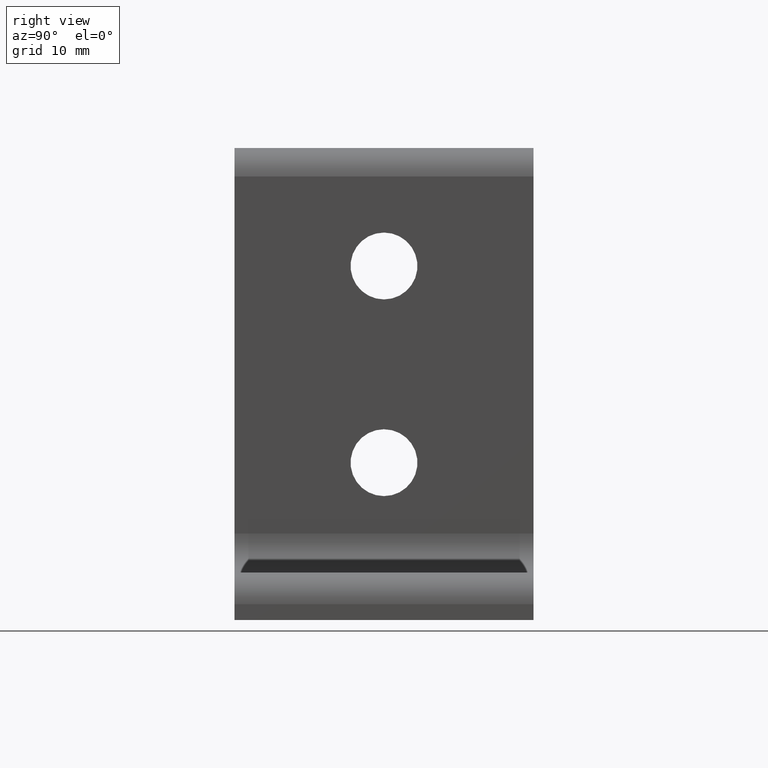
[diagram: clean part render]
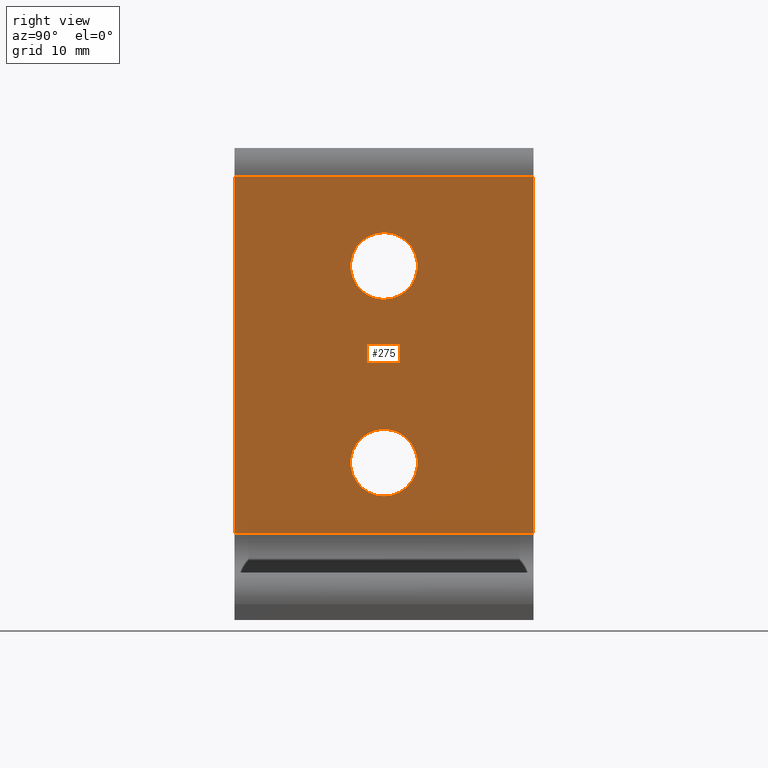
[diagram: same view with one face highlighted and labeled with its STEP entity id]
A machine part, right view. The second image highlights one B-rep face of the part: STEP entity #275.
In plain terms, the highlighted planar face has unit normal (1, 0, 0).
Its self-contained STEP definition (entity closure, byte-faithful):
#17=FACE_BOUND('',#70,.T.);
#18=FACE_BOUND('',#71,.T.);
#33=CIRCLE('',#299,4.24999905648292);
#34=CIRCLE('',#300,4.24999905648292);
#52=FACE_OUTER_BOUND('',#69,.T.);
#69=EDGE_LOOP('',(#211,#212,#213,#214));
#70=EDGE_LOOP('',(#215));
#71=EDGE_LOOP('',(#216));
#98=LINE('',#428,#119);
#99=LINE('',#432,#120);
#100=LINE('',#434,#121);
#101=LINE('',#435,#122);
#119=VECTOR('',#345,38.);
#120=VECTOR('',#350,45.3656752245638);
#121=VECTOR('',#351,38.);
#122=VECTOR('',#352,45.3656752245638);
#142=VERTEX_POINT('',#425);
#143=VERTEX_POINT('',#427);
#144=VERTEX_POINT('',#431);
#145=VERTEX_POINT('',#433);
#146=VERTEX_POINT('',#436);
#147=VERTEX_POINT('',#438);
#171=EDGE_CURVE('',#142,#143,#98,.T.);
#173=EDGE_CURVE('',#142,#144,#99,.T.);
#174=EDGE_CURVE('',#144,#145,#100,.T.);
#175=EDGE_CURVE('',#143,#145,#101,.T.);
#176=EDGE_CURVE('',#146,#146,#33,.T.);
#177=EDGE_CURVE('',#147,#147,#34,.T.);
#211=ORIENTED_EDGE('',*,*,#173,.T.);
#212=ORIENTED_EDGE('',*,*,#174,.T.);
#213=ORIENTED_EDGE('',*,*,#175,.F.);
#214=ORIENTED_EDGE('',*,*,#171,.F.);
#215=ORIENTED_EDGE('',*,*,#176,.T.);
#216=ORIENTED_EDGE('',*,*,#177,.T.);
#265=PLANE('',#298);
#275=ADVANCED_FACE('',(#52,#17,#18),#265,.T.);
#298=AXIS2_PLACEMENT_3D('',#430,#348,#349);
#299=AXIS2_PLACEMENT_3D('',#437,#353,#354);
#300=AXIS2_PLACEMENT_3D('',#439,#355,#356);
#345=DIRECTION('',(0.,-1.,0.));
#348=DIRECTION('center_axis',(1.,0.,0.));
#349=DIRECTION('ref_axis',(0.,0.,-1.));
#350=DIRECTION('',(0.,0.,1.));
#351=DIRECTION('',(0.,-1.,0.));
#352=DIRECTION('',(0.,0.,1.));
#353=DIRECTION('center_axis',(-1.,0.,0.));
#354=DIRECTION('ref_axis',(0.,0.,-1.));
#355=DIRECTION('center_axis',(-1.,0.,0.));
#356=DIRECTION('ref_axis',(0.,0.,-1.));
#425=CARTESIAN_POINT('',(5.98290120221009,19.,11.0037656864647));
#427=CARTESIAN_POINT('',(5.98290120221009,-19.,11.0037656864647));
#428=CARTESIAN_POINT('',(5.98290120221009,19.,11.0037656864647));
#430=CARTESIAN_POINT('Origin',(5.98290120221009,19.,11.0037656864647));
#431=CARTESIAN_POINT('',(5.98290120221009,19.,56.3694409110285));
#432=CARTESIAN_POINT('',(5.98290120221009,19.,11.0037656864647));
#433=CARTESIAN_POINT('',(5.98290120221009,-19.,56.3694409110285));
#434=CARTESIAN_POINT('',(5.98290120221009,19.,56.3694409110285));
#435=CARTESIAN_POINT('',(5.98290120221009,-19.,11.0037656864647));
#436=CARTESIAN_POINT('',(5.98290120221009,-4.218076355E-6,49.249989061303));
#437=CARTESIAN_POINT('Origin',(5.98290120221009,-4.218076356E-6,44.9999900048201));
#438=CARTESIAN_POINT('',(5.98290120221009,-4.218076355E-6,24.2499946164029));
#439=CARTESIAN_POINT('Origin',(5.98290120221009,-4.218076356E-6,19.99999555992));